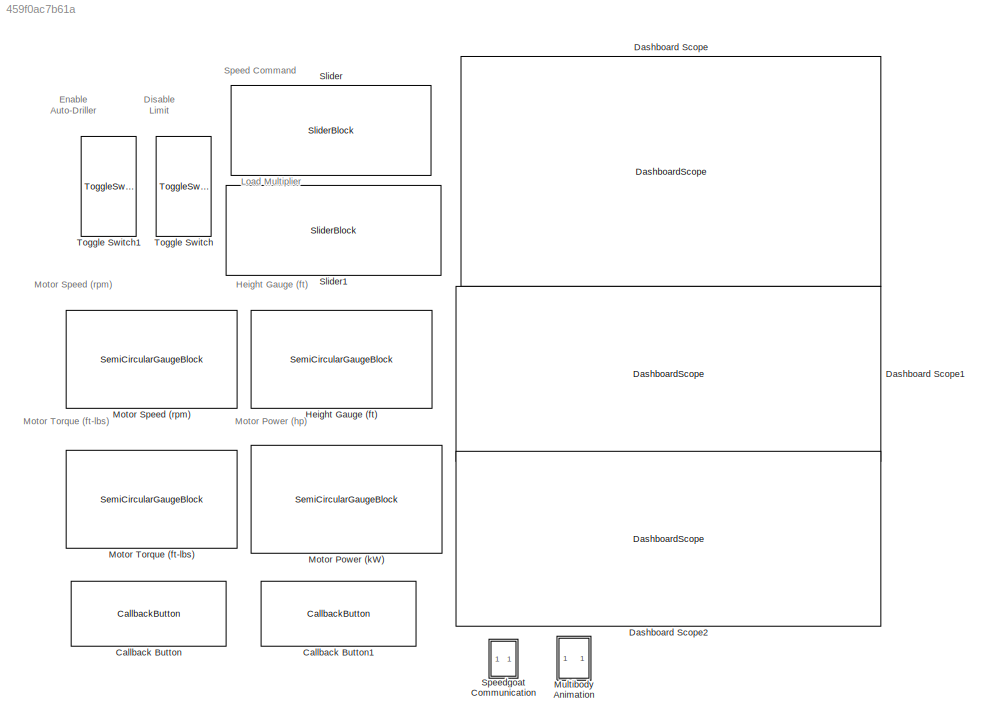
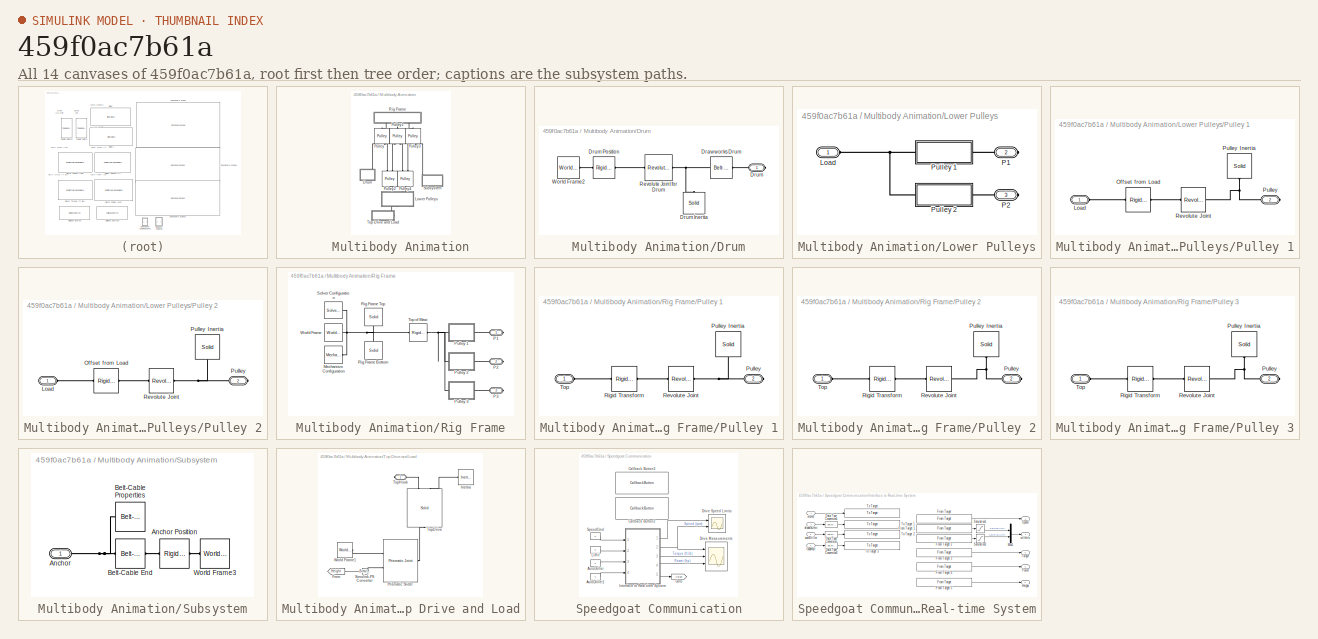
[diagram: thumbnail index - all 14 canvases of the model, root first then tree order]
MODEL slx_459f0ac7b61a
KIND model
CONFIG AbsTol = auto
CONFIG EnableMultiTasking = off
CONFIG FixedStep = 10*Ts
CONFIG InitFcn = Ts = 10e-4;        % SPS/Overall Simulation time step\nTssc = 10*Ts;       % Simscape simulation time step\n\nG = 10;\nRdrum = 0.25;\nNp = 5;\nm_topdrive = 1000;\nm_drillstring = 22500;\nRpulley = Rdrum;\n\nm = m_topdrive + m_drillstring;\n\n% Top/Bottom Distance\nxtop = 48*0.3048;\nxbott = 0;\n\n% Maximum Torque/Power of Drive\nTmax = 8000*1.36;\nPmax = 1500*746;\n\n% Initial Conditions\nv0 = 0; %m/s\nx0 = 0; %m\n\n% Gr...<+55ch>
CONFIG MaxStep = auto
CONFIG MinStep = auto
CONFIG PreLoadFcn = addpath('CAD_Files');\nwarning('off','sm:sli:setup:compile:LocalSolverNotSupported');\n\nloadScale = 4;
CONFIG RelTol = 1e-3
CONFIG SampleTimeConstraint = Unconstrained
CONFIG Solver = ode14x
CONFIG SolverName = ode14x
CONFIG StartTime = 0.0
CONFIG StopFcn = tg = slrt;\ntg.stop;
CONFIG StopTime = inf
BLOCK [CallbackButton] Callback Button
  ButtonText = Open PLC Program (Studio 5000)
  ClickFcn = winopen(['.\PLC_Project\AutoDriller_Ladder_SLRT.ACD']);
  WebBlockId = 1418
BLOCK [CallbackButton] Callback Button1
  ButtonText = Load Plant on Speedgoat
  ClickFcn = model = 'Drawworks_Plant';\ntg = slrt;\nopen_system(model);\nrtwbuild(model);\ntg.load(model);
  WebBlockId = 1420
BLOCK [DashboardScope] Dashboard Scope
  ScaleAtStop = off
  TimeSpan = 60
  WebBlockId = 1425
  Ymax = 2000
  Ymin = -2000
BLOCK [DashboardScope] Dashboard Scope1
  ScaleAtStop = off
  TimeSpan = 60
  WebBlockId = 1429
  Ymax = 11000
  Ymin = 0
BLOCK [DashboardScope] Dashboard Scope2
  ScaleAtStop = off
  TimeSpan = 60
  WebBlockId = 1430
  Ymax = 2000
  Ymin = -2000
BLOCK [SemiCircularGaugeBlock] Height Gauge (ft)
  LabelPosition = Hide
  ScaleMax = 50
  TickInterval = 10
  WebBlockId = 1281
BLOCK [SemiCircularGaugeBlock] Motor Power (kW)
  LabelPosition = Hide
  ScaleMax = 1500
  ScaleMin = -1500
  TickInterval = 500
  WebBlockId = 1282
BLOCK [SemiCircularGaugeBlock] Motor Speed (rpm)
  LabelPosition = Hide
  ScaleMax = 1500
  ScaleMin = -1500
  TickInterval = 500
  WebBlockId = 1283
BLOCK [SemiCircularGaugeBlock] Motor Torque (ft-lbs)
  LabelPosition = Hide
  ScaleMax = 10000
  ScaleMin = -10000
  TickInterval = 5000
  WebBlockId = 1284
BLOCK [SubSystem] Multibody Animation
  Ports = []
  RequestExecContextInheritance = off
BLOCK [SubSystem] Multibody Animation/Drum
  Ports = [0, 0, 0, 0, 0, 0, 1]
  RequestExecContextInheritance = off
BLOCK [Reference] Multibody Animation/Drum/Drawworks Drum  REF=sm_lib/Belts and Cables/Belt-Cable Spool
  Ports = [0, 0, 0, 0, 0, 1, 1]
  SourceBlock = sm_lib/Belts and Cables/Belt-Cable Spool
  SourceProductBaseCode = MS
  SourceProductName = Simscape Multibody
  SourceType = Belt-Cable Spool
BLOCK [PMIOPort] Multibody Animation/Drum/Drum
  Side = Right
BLOCK [Reference] Multibody Animation/Drum/Drum Inertia  REF=sm_lib/Body Elements/Solid
  Ports = [0, 0, 0, 0, 0, 1]
  SourceBlock = sm_lib/Body Elements/Solid
  SourceProductBaseCode = MS
  SourceProductName = Simscape Multibody
  SourceType = Solid
BLOCK [Reference] Multibody Animation/Drum/Drum Position  REF=sm_lib/Frames and
Transforms/Rigid
Transform
  Ports = [0, 0, 0, 0, 0, 1, 1]
  SourceBlock = sm_lib/Frames and\nTransforms/Rigid\nTransform
  SourceProductBaseCode = MS
  SourceProductName = Simscape Multibody
  SourceType = Rigid\nTransform
BLOCK [Reference] Multibody Animation/Drum/Revolute Joint for Drum  REF=sm_lib/Joints/Revolute Joint
  Ports = [0, 0, 0, 0, 0, 1, 1]
  SourceBlock = sm_lib/Joints/Revolute Joint
  SourceProductBaseCode = MS
  SourceProductName = Simscape Multibody
  SourceType = Revolute Joint
BLOCK [Reference] Multibody Animation/Drum/World Frame2  REF=sm_lib/Frames and
Transforms/World Frame
  Ports = [0, 0, 0, 0, 0, 0, 1]
  SourceBlock = sm_lib/Frames and\nTransforms/World Frame
  SourceProductBaseCode = MS
  SourceProductName = Simscape Multibody
  SourceType = World Frame
BLOCK [SubSystem] Multibody Animation/Lower Pulleys
  Ports = [0, 0, 0, 0, 0, 1, 2]
  RequestExecContextInheritance = off
BLOCK [PMIOPort] Multibody Animation/Lower Pulleys/Load
  Side = Left
BLOCK [PMIOPort] Multibody Animation/Lower Pulleys/P1
  Port = 2
  Side = Right
BLOCK [PMIOPort] Multibody Animation/Lower Pulleys/P2
  Port = 3
  Side = Right
BLOCK [SubSystem] Multibody Animation/Lower Pulleys/Pulley 1
  Ports = [0, 0, 0, 0, 0, 1, 1]
  RequestExecContextInheritance = off
BLOCK [PMIOPort] Multibody Animation/Lower Pulleys/Pulley 1/Load
  Side = Left
BLOCK [Reference] Multibody Animation/Lower Pulleys/Pulley 1/Offset from Load  REF=sm_lib/Frames and
Transforms/Rigid
Transform
  Ports = [0, 0, 0, 0, 0, 1, 1]
  SourceBlock = sm_lib/Frames and\nTransforms/Rigid\nTransform
  SourceProductBaseCode = MS
  SourceProductName = Simscape Multibody
  SourceType = Rigid\nTransform
BLOCK [PMIOPort] Multibody Animation/Lower Pulleys/Pulley 1/Pulley
  Port = 2
  Side = Right
BLOCK [Reference] Multibody Animation/Lower Pulleys/Pulley 1/Pulley Inertia  REF=sm_lib/Body Elements/Solid
  Ports = [0, 0, 0, 0, 0, 1]
  SourceBlock = sm_lib/Body Elements/Solid
  SourceProductBaseCode = MS
  SourceProductName = Simscape Multibody
  SourceType = Solid
BLOCK [Reference] Multibody Animation/Lower Pulleys/Pulley 1/Revolute Joint  REF=sm_lib/Joints/Revolute Joint
  Ports = [0, 0, 0, 0, 0, 1, 1]
  SourceBlock = sm_lib/Joints/Revolute Joint
  SourceProductBaseCode = MS
  SourceProductName = Simscape Multibody
  SourceType = Revolute Joint
BLOCK [SubSystem] Multibody Animation/Lower Pulleys/Pulley 2
  Ports = [0, 0, 0, 0, 0, 1, 1]
  RequestExecContextInheritance = off
BLOCK [PMIOPort] Multibody Animation/Lower Pulleys/Pulley 2/Load
  Side = Left
BLOCK [Reference] Multibody Animation/Lower Pulleys/Pulley 2/Offset from Load  REF=sm_lib/Frames and
Transforms/Rigid
Transform
  Ports = [0, 0, 0, 0, 0, 1, 1]
  SourceBlock = sm_lib/Frames and\nTransforms/Rigid\nTransform
  SourceProductBaseCode = MS
  SourceProductName = Simscape Multibody
  SourceType = Rigid\nTransform
BLOCK [PMIOPort] Multibody Animation/Lower Pulleys/Pulley 2/Pulley
  Port = 2
  Side = Right
BLOCK [Reference] Multibody Animation/Lower Pulleys/Pulley 2/Pulley Inertia  REF=sm_lib/Body Elements/Solid
  Ports = [0, 0, 0, 0, 0, 1]
  SourceBlock = sm_lib/Body Elements/Solid
  SourceProductBaseCode = MS
  SourceProductName = Simscape Multibody
  SourceType = Solid
BLOCK [Reference] Multibody Animation/Lower Pulleys/Pulley 2/Revolute Joint  REF=sm_lib/Joints/Revolute Joint
  Ports = [0, 0, 0, 0, 0, 1, 1]
  SourceBlock = sm_lib/Joints/Revolute Joint
  SourceProductBaseCode = MS
  SourceProductName = Simscape Multibody
  SourceType = Revolute Joint
BLOCK [Reference] Multibody Animation/Pulley  REF=sm_lib/Belts and Cables/Pulley
  Ports = [0, 0, 0, 0, 0, 1, 2]
  SourceBlock = sm_lib/Belts and Cables/Pulley
  SourceProductBaseCode = MS
  SourceProductName = Simscape Multibody
  SourceType = Pulley
BLOCK [Reference] Multibody Animation/Pulley1  REF=sm_lib/Belts and Cables/Pulley
  Ports = [0, 0, 0, 0, 0, 1, 2]
  SourceBlock = sm_lib/Belts and Cables/Pulley
  SourceProductBaseCode = MS
  SourceProductName = Simscape Multibody
  SourceType = Pulley
BLOCK [Reference] Multibody Animation/Pulley2  REF=sm_lib/Belts and Cables/Pulley
  Ports = [0, 0, 0, 0, 0, 1, 2]
  SourceBlock = sm_lib/Belts and Cables/Pulley
  SourceProductBaseCode = MS
  SourceProductName = Simscape Multibody
  SourceType = Pulley
BLOCK [Reference] Multibody Animation/Pulley3  REF=sm_lib/Belts and Cables/Pulley
  Ports = [0, 0, 0, 0, 0, 1, 2]
  SourceBlock = sm_lib/Belts and Cables/Pulley
  SourceProductBaseCode = MS
  SourceProductName = Simscape Multibody
  SourceType = Pulley
BLOCK [Reference] Multibody Animation/Pulley4  REF=sm_lib/Belts and Cables/Pulley
  Ports = [0, 0, 0, 0, 0, 1, 2]
  SourceBlock = sm_lib/Belts and Cables/Pulley
  SourceProductBaseCode = MS
  SourceProductName = Simscape Multibody
  SourceType = Pulley
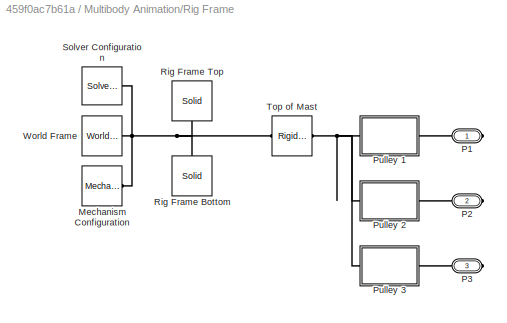
BLOCK [SubSystem] Multibody Animation/Rig Frame
  Ports = [0, 0, 0, 0, 0, 0, 3]
  RequestExecContextInheritance = off
BLOCK [Reference] Multibody Animation/Rig Frame/Mechanism Configuration  REF=sm_lib/Utilities/Mechanism
Configuration
  Ports = [0, 0, 0, 0, 0, 0, 1]
  SourceBlock = sm_lib/Utilities/Mechanism\nConfiguration
  SourceProductBaseCode = MS
  SourceProductName = Simscape Multibody
  SourceType = Mechanism\nConfiguration
BLOCK [PMIOPort] Multibody Animation/Rig Frame/P1
  Side = Right
BLOCK [PMIOPort] Multibody Animation/Rig Frame/P2
  Port = 2
  Side = Right
BLOCK [PMIOPort] Multibody Animation/Rig Frame/P3
  Port = 3
  Side = Right
BLOCK [SubSystem] Multibody Animation/Rig Frame/Pulley 1
  Ports = [0, 0, 0, 0, 0, 1, 1]
  RequestExecContextInheritance = off
BLOCK [PMIOPort] Multibody Animation/Rig Frame/Pulley 1/Pulley
  Port = 2
  Side = Right
BLOCK [Reference] Multibody Animation/Rig Frame/Pulley 1/Pulley Inertia  REF=sm_lib/Body Elements/Solid
  Ports = [0, 0, 0, 0, 0, 1]
  SourceBlock = sm_lib/Body Elements/Solid
  SourceProductBaseCode = MS
  SourceProductName = Simscape Multibody
  SourceType = Solid
BLOCK [Reference] Multibody Animation/Rig Frame/Pulley 1/Revolute Joint  REF=sm_lib/Joints/Revolute Joint
  Ports = [0, 0, 0, 0, 0, 1, 1]
  SourceBlock = sm_lib/Joints/Revolute Joint
  SourceProductBaseCode = MS
  SourceProductName = Simscape Multibody
  SourceType = Revolute Joint
BLOCK [Reference] Multibody Animation/Rig Frame/Pulley 1/Rigid Transform  REF=sm_lib/Frames and
Transforms/Rigid
Transform
  Ports = [0, 0, 0, 0, 0, 1, 1]
  SourceBlock = sm_lib/Frames and\nTransforms/Rigid\nTransform
  SourceProductBaseCode = MS
  SourceProductName = Simscape Multibody
  SourceType = Rigid\nTransform
BLOCK [PMIOPort] Multibody Animation/Rig Frame/Pulley 1/Top
  Side = Left
BLOCK [SubSystem] Multibody Animation/Rig Frame/Pulley 2
  Ports = [0, 0, 0, 0, 0, 1, 1]
  RequestExecContextInheritance = off
BLOCK [PMIOPort] Multibody Animation/Rig Frame/Pulley 2/Pulley
  Port = 2
  Side = Right
BLOCK [Reference] Multibody Animation/Rig Frame/Pulley 2/Pulley Inertia  REF=sm_lib/Body Elements/Solid
  Ports = [0, 0, 0, 0, 0, 1]
  SourceBlock = sm_lib/Body Elements/Solid
  SourceProductBaseCode = MS
  SourceProductName = Simscape Multibody
  SourceType = Solid
BLOCK [Reference] Multibody Animation/Rig Frame/Pulley 2/Revolute Joint  REF=sm_lib/Joints/Revolute Joint
  Ports = [0, 0, 0, 0, 0, 1, 1]
  SourceBlock = sm_lib/Joints/Revolute Joint
  SourceProductBaseCode = MS
  SourceProductName = Simscape Multibody
  SourceType = Revolute Joint
BLOCK [Reference] Multibody Animation/Rig Frame/Pulley 2/Rigid Transform  REF=sm_lib/Frames and
Transforms/Rigid
Transform
  Ports = [0, 0, 0, 0, 0, 1, 1]
  SourceBlock = sm_lib/Frames and\nTransforms/Rigid\nTransform
  SourceProductBaseCode = MS
  SourceProductName = Simscape Multibody
  SourceType = Rigid\nTransform
BLOCK [PMIOPort] Multibody Animation/Rig Frame/Pulley 2/Top
  Side = Left
BLOCK [SubSystem] Multibody Animation/Rig Frame/Pulley 3
  Ports = [0, 0, 0, 0, 0, 1, 1]
  RequestExecContextInheritance = off
BLOCK [PMIOPort] Multibody Animation/Rig Frame/Pulley 3/Pulley
  Port = 2
  Side = Right
BLOCK [Reference] Multibody Animation/Rig Frame/Pulley 3/Pulley Inertia  REF=sm_lib/Body Elements/Solid
  Ports = [0, 0, 0, 0, 0, 1]
  SourceBlock = sm_lib/Body Elements/Solid
  SourceProductBaseCode = MS
  SourceProductName = Simscape Multibody
  SourceType = Solid
BLOCK [Reference] Multibody Animation/Rig Frame/Pulley 3/Revolute Joint  REF=sm_lib/Joints/Revolute Joint
  Ports = [0, 0, 0, 0, 0, 1, 1]
  SourceBlock = sm_lib/Joints/Revolute Joint
  SourceProductBaseCode = MS
  SourceProductName = Simscape Multibody
  SourceType = Revolute Joint
BLOCK [Reference] Multibody Animation/Rig Frame/Pulley 3/Rigid Transform  REF=sm_lib/Frames and
Transforms/Rigid
Transform
  Ports = [0, 0, 0, 0, 0, 1, 1]
  SourceBlock = sm_lib/Frames and\nTransforms/Rigid\nTransform
  SourceProductBaseCode = MS
  SourceProductName = Simscape Multibody
  SourceType = Rigid\nTransform
BLOCK [PMIOPort] Multibody Animation/Rig Frame/Pulley 3/Top
  Side = Left
BLOCK [Reference] Multibody Animation/Rig Frame/Rig Frame Bottom  REF=sm_lib/Body Elements/Solid
  Ports = [0, 0, 0, 0, 0, 1]
  SourceBlock = sm_lib/Body Elements/Solid
  SourceProductBaseCode = MS
  SourceProductName = Simscape Multibody
  SourceType = Solid
BLOCK [Reference] Multibody Animation/Rig Frame/Rig Frame Top  REF=sm_lib/Body Elements/Solid
  Ports = [0, 0, 0, 0, 0, 1]
  SourceBlock = sm_lib/Body Elements/Solid
  SourceProductBaseCode = MS
  SourceProductName = Simscape Multibody
  SourceType = Solid
BLOCK [Reference] Multibody Animation/Rig Frame/Solver Configuration   REF=nesl_utility/Solver
Configuration
  Ports = [0, 0, 0, 0, 0, 0, 1]
  SourceBlock = nesl_utility/Solver\nConfiguration
  SourceProductBaseCode = SS
  SourceProductName = Simscape
  SourceType = Solver\nConfiguration
BLOCK [Reference] Multibody Animation/Rig Frame/Top of Mast  REF=sm_lib/Frames and
Transforms/Rigid
Transform
  Ports = [0, 0, 0, 0, 0, 1, 1]
  SourceBlock = sm_lib/Frames and\nTransforms/Rigid\nTransform
  SourceProductBaseCode = MS
  SourceProductName = Simscape Multibody
  SourceType = Rigid\nTransform
BLOCK [Reference] Multibody Animation/Rig Frame/World Frame  REF=sm_lib/Frames and
Transforms/World Frame
  Ports = [0, 0, 0, 0, 0, 0, 1]
  SourceBlock = sm_lib/Frames and\nTransforms/World Frame
  SourceProductBaseCode = MS
  SourceProductName = Simscape Multibody
  SourceType = World Frame
BLOCK [SubSystem] Multibody Animation/Subsystem
  Ports = [0, 0, 0, 0, 0, 1]
  RequestExecContextInheritance = off
BLOCK [PMIOPort] Multibody Animation/Subsystem/Anchor
  Side = Left
BLOCK [Reference] Multibody Animation/Subsystem/Anchor Position  REF=sm_lib/Frames and
Transforms/Rigid
Transform
  Ports = [0, 0, 0, 0, 0, 1, 1]
  SourceBlock = sm_lib/Frames and\nTransforms/Rigid\nTransform
  SourceProductBaseCode = MS
  SourceProductName = Simscape Multibody
  SourceType = Rigid\nTransform
BLOCK [Reference] Multibody Animation/Subsystem/Belt-Cable End  REF=sm_lib/Belts and Cables/Belt-Cable End
  Ports = [0, 0, 0, 0, 0, 1, 1]
  SourceBlock = sm_lib/Belts and Cables/Belt-Cable End
  SourceProductBaseCode = MS
  SourceProductName = Simscape Multibody
  SourceType = Belt-Cable End
BLOCK [Reference] Multibody Animation/Subsystem/Belt-Cable Properties  REF=sm_lib/Belts and Cables/Belt-Cable
Properties
  Ports = [0, 0, 0, 0, 0, 1]
  SourceBlock = sm_lib/Belts and Cables/Belt-Cable\nProperties
  SourceProductBaseCode = MS
  SourceProductName = Simscape Multibody
  SourceType = Belt-Cable\nProperties
BLOCK [Reference] Multibody Animation/Subsystem/World Frame3  REF=sm_lib/Frames and
Transforms/World Frame
  Ports = [0, 0, 0, 0, 0, 0, 1]
  SourceBlock = sm_lib/Frames and\nTransforms/World Frame
  SourceProductBaseCode = MS
  SourceProductName = Simscape Multibody
  SourceType = World Frame
BLOCK [SubSystem] Multibody Animation/Top Drive and Load
  Ports = [0, 0, 0, 0, 0, 0, 1]
  RequestExecContextInheritance = off
BLOCK [From] Multibody Animation/Top Drive and Load/From
  GotoTag = Height
  TagVisibility = global
BLOCK [Reference] Multibody Animation/Top Drive and Load/Inertia  REF=sm_lib/Body Elements/Inertia
  Ports = [0, 0, 0, 0, 0, 0, 1]
  SourceBlock = sm_lib/Body Elements/Inertia
  SourceProductBaseCode = MS
  SourceProductName = Simscape Multibody
  SourceType = Inertia
BLOCK [Reference] Multibody Animation/Top Drive and Load/Prismatic Slider  REF=sm_lib/Joints/Prismatic
Joint
  Ports = [0, 0, 0, 0, 0, 2, 1]
  SourceBlock = sm_lib/Joints/Prismatic\nJoint
  SourceProductBaseCode = MS
  SourceProductName = Simscape Multibody
  SourceType = Prismatic\nJoint
BLOCK [Reference] Multibody Animation/Top Drive and Load/Simulink-PS Converter  REF=nesl_utility/Simulink-PS
Converter
  Ports = [1, 0, 0, 0, 0, 0, 1]
  SourceBlock = nesl_utility/Simulink-PS\nConverter
  SourceProductBaseCode = SS
  SourceProductName = Simscape
  SourceType = Simulink-PS\nConverter
BLOCK [Reference] Multibody Animation/Top Drive and Load/TopDrive  REF=sm_lib/Body Elements/Solid
  Ports = [0, 0, 0, 0, 0, 2, 1]
  SourceBlock = sm_lib/Body Elements/Solid
  SourceProductBaseCode = MS
  SourceProductName = Simscape Multibody
  SourceType = Solid
BLOCK [PMIOPort] Multibody Animation/Top Drive and Load/TopHook
  Side = Right
BLOCK [Reference] Multibody Animation/Top Drive and Load/World Frame1  REF=sm_lib/Frames and
Transforms/World Frame
  Ports = [0, 0, 0, 0, 0, 0, 1]
  SourceBlock = sm_lib/Frames and\nTransforms/World Frame
  SourceProductBaseCode = MS
  SourceProductName = Simscape Multibody
  SourceType = World Frame
BLOCK [SliderBlock] Slider
  LabelPosition = Hide
  ScaleMax = 1500
  ScaleMin = -1500
  WebBlockId = 1132
BLOCK [SliderBlock] Slider1
  LabelPosition = Hide
  ScaleMax = 6
  ScaleMin = 2
  TickInterval = 1
  WebBlockId = 1290
BLOCK [SubSystem] Speedgoat Communication
  Ports = []
  RequestExecContextInheritance = off
BLOCK [Constant] Speedgoat Communication/AutoDriller
  OutDataTypeStr = boolean
  SampleTime = Tssc
  Value = 0
BLOCK [Constant] Speedgoat Communication/AutoDriller1
  OutDataTypeStr = double
  SampleTime = Tssc
  Value = 4
BLOCK [CallbackButton] Speedgoat Communication/Callback Button2
  ButtonText = Start Plant
  ClickFcn = tg = slrt;\ntg.StopTime = inf;\ntg.start;
  WebBlockId = 1421
BLOCK [CallbackButton] Speedgoat Communication/Callback Button3
  ButtonText = Stop Plant
  ClickFcn = tg = slrt;\ntg.stop;
  WebBlockId = 1422
BLOCK [Scope] Speedgoat Communication/Drive Measurements
  Commented = on
  Floating = off
  NumInputPorts = 3
  Ports = [3]
  ScopeSpecificationString = Simulink.scopes.TimeScopeBlockCfg('CurrentConfiguration', extmgr.ConfigurationSet(extmgr.Configuration('Core','General UI',true),extmgr.Configuration('Core','Source UI',true),extmgr.Configuration('Sources','WiredSimulink',true,'DataLoggingSaveFormat','Array','DataLoggingDecimation','1','DataLoggingDecimateData',true,'DataLoggingVariableName','ScopeData1'),extmgr.Configuration('Visuals','Time Domai...<+3020ch>
BLOCK [Scope] Speedgoat Communication/Drive Speed Limits
  Commented = on
  Floating = off
  NumInputPorts = 2
  Ports = [2]
  ScopeSpecificationString = Simulink.scopes.TimeScopeBlockCfg('CurrentConfiguration', extmgr.ConfigurationSet(extmgr.Configuration('Core','General UI',true),extmgr.Configuration('Core','Source UI',true),extmgr.Configuration('Sources','WiredSimulink',true,'DataLoggingVariableName','ScopeData2'),extmgr.Configuration('Visuals','Time Domain',true,'SerializedDisplays',{struct('MinYLimReal','-1875.00000','MaxYLimReal','1875.00000'...<+1906ch>
BLOCK [Goto] Speedgoat Communication/Goto
  GotoTag = Height
  TagVisibility = global
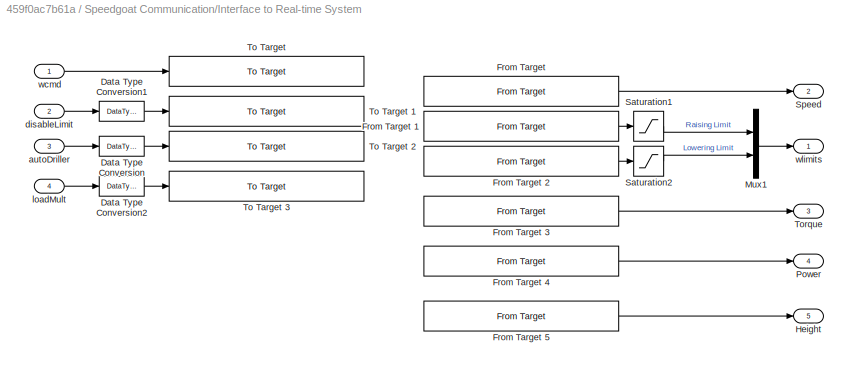
BLOCK [SubSystem] Speedgoat Communication/Interface to Real-time System
  Ports = [4, 5]
  RequestExecContextInheritance = off
BLOCK [DataTypeConversion] Speedgoat Communication/Interface to Real-time System/Data Type Conversion
  OutDataTypeStr = double
  RndMeth = Floor
  SaturateOnIntegerOverflow = off
BLOCK [DataTypeConversion] Speedgoat Communication/Interface to Real-time System/Data Type Conversion1
  OutDataTypeStr = double
  RndMeth = Floor
  SaturateOnIntegerOverflow = off
BLOCK [DataTypeConversion] Speedgoat Communication/Interface to Real-time System/Data Type Conversion2
  OutDataTypeStr = double
  RndMeth = Floor
  SaturateOnIntegerOverflow = off
BLOCK [Reference] Speedgoat Communication/Interface to Real-time System/From Target   REF=slrtlib/Displays and
Logging/From Target 
  Ports = [0, 1]
  SourceBlock = slrtlib/Displays and\nLogging/From Target
  SourceProductBaseCode = XP
  SourceProductName = Simulink Real-Time
  SourceType = xpc2dng
BLOCK [Reference] Speedgoat Communication/Interface to Real-time System/From Target 1  REF=slrtlib/Displays and
Logging/From Target 
  Ports = [0, 1]
  SourceBlock = slrtlib/Displays and\nLogging/From Target
  SourceProductBaseCode = XP
  SourceProductName = Simulink Real-Time
  SourceType = xpc2dng
BLOCK [Reference] Speedgoat Communication/Interface to Real-time System/From Target 2  REF=slrtlib/Displays and
Logging/From Target 
  Ports = [0, 1]
  SourceBlock = slrtlib/Displays and\nLogging/From Target
  SourceProductBaseCode = XP
  SourceProductName = Simulink Real-Time
  SourceType = xpc2dng
BLOCK [Reference] Speedgoat Communication/Interface to Real-time System/From Target 3  REF=slrtlib/Displays and
Logging/From Target 
  Ports = [0, 1]
  SourceBlock = slrtlib/Displays and\nLogging/From Target
  SourceProductBaseCode = XP
  SourceProductName = Simulink Real-Time
  SourceType = xpc2dng
BLOCK [Reference] Speedgoat Communication/Interface to Real-time System/From Target 4  REF=slrtlib/Displays and
Logging/From Target 
  Ports = [0, 1]
  SourceBlock = slrtlib/Displays and\nLogging/From Target
  SourceProductBaseCode = XP
  SourceProductName = Simulink Real-Time
  SourceType = xpc2dng
BLOCK [Reference] Speedgoat Communication/Interface to Real-time System/From Target 5  REF=slrtlib/Displays and
Logging/From Target 
  Ports = [0, 1]
  SourceBlock = slrtlib/Displays and\nLogging/From Target
  SourceProductBaseCode = XP
  SourceProductName = Simulink Real-Time
  SourceType = xpc2dng
BLOCK [Outport] Speedgoat Communication/Interface to Real-time System/Height
  IconDisplay = Port number
  Port = 5
BLOCK [Mux] Speedgoat Communication/Interface to Real-time System/Mux1
  DisplayOption = bar
  Inputs = 2
  Ports = [2, 1]
BLOCK [Outport] Speedgoat Communication/Interface to Real-time System/Power
  IconDisplay = Port number
  Port = 4
BLOCK [Saturate] Speedgoat Communication/Interface to Real-time System/Saturation1
  InputPortMap = u0
  LowerLimit = -1500
  Ports = [1, 1]
  UpperLimit = 1500
BLOCK [Saturate] Speedgoat Communication/Interface to Real-time System/Saturation2
  InputPortMap = u0
  LowerLimit = -1500
  Ports = [1, 1]
  UpperLimit = 1500
BLOCK [Outport] Speedgoat Communication/Interface to Real-time System/Speed
  IconDisplay = Port number
  Port = 2
BLOCK [Reference] Speedgoat Communication/Interface to Real-time System/To Target   REF=slrtlib/Displays and
Logging/To Target 
  Ports = [1]
  SourceBlock = slrtlib/Displays and\nLogging/To Target
  SourceProductBaseCode = XP
  SourceProductName = Simulink Real-Time
  SourceType = dng2xpc
BLOCK [Reference] Speedgoat Communication/Interface to Real-time System/To Target 1  REF=slrtlib/Displays and
Logging/To Target 
  Ports = [1]
  SourceBlock = slrtlib/Displays and\nLogging/To Target
  SourceProductBaseCode = XP
  SourceProductName = Simulink Real-Time
  SourceType = dng2xpc
BLOCK [Reference] Speedgoat Communication/Interface to Real-time System/To Target 2  REF=slrtlib/Displays and
Logging/To Target 
  Ports = [1]
  SourceBlock = slrtlib/Displays and\nLogging/To Target
  SourceProductBaseCode = XP
  SourceProductName = Simulink Real-Time
  SourceType = dng2xpc
BLOCK [Reference] Speedgoat Communication/Interface to Real-time System/To Target 3  REF=slrtlib/Displays and
Logging/To Target 
  Ports = [1]
  SourceBlock = slrtlib/Displays and\nLogging/To Target
  SourceProductBaseCode = XP
  SourceProductName = Simulink Real-Time
  SourceType = dng2xpc
BLOCK [Outport] Speedgoat Communication/Interface to Real-time System/Torque
  IconDisplay = Port number
  Port = 3
BLOCK [Inport] Speedgoat Communication/Interface to Real-time System/autoDriller
  IconDisplay = Port number
  Port = 3
BLOCK [Inport] Speedgoat Communication/Interface to Real-time System/disableLimit
  IconDisplay = Port number
  Port = 2
BLOCK [Inport] Speedgoat Communication/Interface to Real-time System/loadMult
  IconDisplay = Port number
  Port = 4
BLOCK [Inport] Speedgoat Communication/Interface to Real-time System/wcmd
  IconDisplay = Port number
BLOCK [Outport] Speedgoat Communication/Interface to Real-time System/wlimits
  IconDisplay = Port number
BLOCK [Constant] Speedgoat Communication/Limit
  OutDataTypeStr = boolean
  SampleTime = Tssc
  Value = 0
BLOCK [Constant] Speedgoat Communication/SpeedCmd
  OutDataTypeStr = double
  SampleTime = Tssc
  Value = 0
BLOCK [ToggleSwitchBlock] Toggle Switch
  LabelPosition = Hide
  WebBlockId = 1329
BLOCK [ToggleSwitchBlock] Toggle Switch1
  LabelPosition = Hide
  WebBlockId = 1330
ANNOTATION (root): Motor Power (hp)
ANNOTATION (root): Disable Limit
ANNOTATION (root): Enable Auto-Driller
ANNOTATION (root): Height Gauge (ft)
ANNOTATION (root): Load Multiplier
ANNOTATION (root): Motor Speed (rpm)
ANNOTATION (root): Motor Torque (ft-lbs)
ANNOTATION (root): Speed Command
LINE Multibody Animation/Top Drive and Load/From:1 -> Multibody Animation/Top Drive and Load/Simulink-PS Converter:1
LINE Speedgoat Communication/AutoDriller1:1 -> Speedgoat Communication/Interface to Real-time System:4
LINE Speedgoat Communication/AutoDriller:1 -> Speedgoat Communication/Interface to Real-time System:3
LINE Speedgoat Communication/Interface to Real-time System/Data Type Conversion1:1 -> Speedgoat Communication/Interface to Real-time System/To Target 1:1
LINE Speedgoat Communication/Interface to Real-time System/Data Type Conversion2:1 -> Speedgoat Communication/Interface to Real-time System/To Target 3:1
LINE Speedgoat Communication/Interface to Real-time System/Data Type Conversion:1 -> Speedgoat Communication/Interface to Real-time System/To Target 2:1
LINE Speedgoat Communication/Interface to Real-time System/From Target 1:1 -> Speedgoat Communication/Interface to Real-time System/Saturation1:1
LINE Speedgoat Communication/Interface to Real-time System/From Target 2:1 -> Speedgoat Communication/Interface to Real-time System/Saturation2:1
LINE Speedgoat Communication/Interface to Real-time System/From Target 3:1 -> Speedgoat Communication/Interface to Real-time System/Torque:1
LINE Speedgoat Communication/Interface to Real-time System/From Target 4:1 -> Speedgoat Communication/Interface to Real-time System/Power:1
LINE Speedgoat Communication/Interface to Real-time System/From Target 5:1 -> Speedgoat Communication/Interface to Real-time System/Height:1
LINE Speedgoat Communication/Interface to Real-time System/From Target :1 -> Speedgoat Communication/Interface to Real-time System/Speed:1
LINE Speedgoat Communication/Interface to Real-time System/Mux1:1 -> Speedgoat Communication/Interface to Real-time System/wlimits:1
LINE Speedgoat Communication/Interface to Real-time System/Saturation1:1 -> Speedgoat Communication/Interface to Real-time System/Mux1:1
LINE Speedgoat Communication/Interface to Real-time System/Saturation2:1 -> Speedgoat Communication/Interface to Real-time System/Mux1:2
LINE Speedgoat Communication/Interface to Real-time System/autoDriller:1 -> Speedgoat Communication/Interface to Real-time System/Data Type Conversion:1
LINE Speedgoat Communication/Interface to Real-time System/disableLimit:1 -> Speedgoat Communication/Interface to Real-time System/Data Type Conversion1:1
LINE Speedgoat Communication/Interface to Real-time System/loadMult:1 -> Speedgoat Communication/Interface to Real-time System/Data Type Conversion2:1
LINE Speedgoat Communication/Interface to Real-time System/wcmd:1 -> Speedgoat Communication/Interface to Real-time System/To Target :1
LINE Speedgoat Communication/Interface to Real-time System:1 -> Speedgoat Communication/Drive Speed Limits:1
NET Speedgoat Communication/Interface to Real-time System:2 -> Speedgoat Communication/Drive Measurements:1, Speedgoat Communication/Drive Speed Limits:2
LINE Speedgoat Communication/Interface to Real-time System:3 -> Speedgoat Communication/Drive Measurements:2
LINE Speedgoat Communication/Interface to Real-time System:4 -> Speedgoat Communication/Drive Measurements:3
LINE Speedgoat Communication/Interface to Real-time System:5 -> Speedgoat Communication/Goto:1
LINE Speedgoat Communication/Limit:1 -> Speedgoat Communication/Interface to Real-time System:2
LINE Speedgoat Communication/SpeedCmd:1 -> Speedgoat Communication/Interface to Real-time System:1
PNET net1: Multibody Animation/Drum/Drawworks Drum:LConn1 -- Multibody Animation/Drum/Drum Inertia:LConn1 -- Multibody Animation/Drum/Revolute Joint for Drum:RConn1
PLINE Multibody Animation/Drum/Drawworks Drum:RConn1 -- Multibody Animation/Drum/Drum:RConn1
PLINE Multibody Animation/Drum/Drum Position:LConn1 -- Multibody Animation/Drum/World Frame2:RConn1
PLINE Multibody Animation/Drum/Drum Position:RConn1 -- Multibody Animation/Drum/Revolute Joint for Drum:LConn1
PLINE Multibody Animation/Drum:RConn1 -- Multibody Animation/Pulley:RConn1
PNET net2: Multibody Animation/Lower Pulleys/Load:RConn1 -- Multibody Animation/Lower Pulleys/Pulley 1:LConn1 -- Multibody Animation/Lower Pulleys/Pulley 2:LConn1
PLINE Multibody Animation/Lower Pulleys/P1:RConn1 -- Multibody Animation/Lower Pulleys/Pulley 1:RConn1
PLINE Multibody Animation/Lower Pulleys/P2:RConn1 -- Multibody Animation/Lower Pulleys/Pulley 2:RConn1
PLINE Multibody Animation/Lower Pulleys/Pulley 1/Load:RConn1 -- Multibody Animation/Lower Pulleys/Pulley 1/Offset from Load:LConn1
PLINE Multibody Animation/Lower Pulleys/Pulley 1/Offset from Load:RConn1 -- Multibody Animation/Lower Pulleys/Pulley 1/Revolute Joint:LConn1
PNET net3: Multibody Animation/Lower Pulleys/Pulley 1/Pulley Inertia:LConn1 -- Multibody Animation/Lower Pulleys/Pulley 1/Pulley:RConn1 -- Multibody Animation/Lower Pulleys/Pulley 1/Revolute Joint:RConn1
PLINE Multibody Animation/Lower Pulleys/Pulley 2/Load:RConn1 -- Multibody Animation/Lower Pulleys/Pulley 2/Offset from Load:LConn1
PLINE Multibody Animation/Lower Pulleys/Pulley 2/Offset from Load:RConn1 -- Multibody Animation/Lower Pulleys/Pulley 2/Revolute Joint:LConn1
PNET net4: Multibody Animation/Lower Pulleys/Pulley 2/Pulley Inertia:LConn1 -- Multibody Animation/Lower Pulleys/Pulley 2/Pulley:RConn1 -- Multibody Animation/Lower Pulleys/Pulley 2/Revolute Joint:RConn1
PLINE Multibody Animation/Lower Pulleys:LConn1 -- Multibody Animation/Top Drive and Load:RConn1
PLINE Multibody Animation/Lower Pulleys:RConn1 -- Multibody Animation/Pulley2:LConn1
PLINE Multibody Animation/Lower Pulleys:RConn2 -- Multibody Animation/Pulley4:LConn1
PLINE Multibody Animation/Pulley1:LConn1 -- Multibody Animation/Rig Frame:RConn2
PLINE Multibody Animation/Pulley1:RConn1 -- Multibody Animation/Pulley2:RConn2
PLINE Multibody Animation/Pulley1:RConn2 -- Multibody Animation/Pulley4:RConn1
PLINE Multibody Animation/Pulley2:RConn1 -- Multibody Animation/Pulley:RConn2
PLINE Multibody Animation/Pulley3:LConn1 -- Multibody Animation/Rig Frame:RConn3
PLINE Multibody Animation/Pulley3:RConn1 -- Multibody Animation/Pulley4:RConn2
PLINE Multibody Animation/Pulley3:RConn2 -- Multibody Animation/Subsystem:LConn1
PLINE Multibody Animation/Pulley:LConn1 -- Multibody Animation/Rig Frame:RConn1
PNET net5: Multibody Animation/Rig Frame/Mechanism Configuration:RConn1 -- Multibody Animation/Rig Frame/Rig Frame Bottom:LConn1 -- Multibody Animation/Rig Frame/Rig Frame Top:LConn1 -- Multibody Animation/Rig Frame/Solver Configuration :RConn1 -- Multibody Animation/Rig Frame/Top of Mast:LConn1 -- Multibody Animation/Rig Frame/World Frame:RConn1
PLINE Multibody Animation/Rig Frame/P1:RConn1 -- Multibody Animation/Rig Frame/Pulley 1:RConn1
PLINE Multibody Animation/Rig Frame/P2:RConn1 -- Multibody Animation/Rig Frame/Pulley 2:RConn1
PLINE Multibody Animation/Rig Frame/P3:RConn1 -- Multibody Animation/Rig Frame/Pulley 3:RConn1
PNET net6: Multibody Animation/Rig Frame/Pulley 1/Pulley Inertia:LConn1 -- Multibody Animation/Rig Frame/Pulley 1/Pulley:RConn1 -- Multibody Animation/Rig Frame/Pulley 1/Revolute Joint:RConn1
PLINE Multibody Animation/Rig Frame/Pulley 1/Revolute Joint:LConn1 -- Multibody Animation/Rig Frame/Pulley 1/Rigid Transform:RConn1
PLINE Multibody Animation/Rig Frame/Pulley 1/Rigid Transform:LConn1 -- Multibody Animation/Rig Frame/Pulley 1/Top:RConn1
PNET net7: Multibody Animation/Rig Frame/Pulley 1:LConn1 -- Multibody Animation/Rig Frame/Pulley 2:LConn1 -- Multibody Animation/Rig Frame/Pulley 3:LConn1 -- Multibody Animation/Rig Frame/Top of Mast:RConn1
PNET net8: Multibody Animation/Rig Frame/Pulley 2/Pulley Inertia:LConn1 -- Multibody Animation/Rig Frame/Pulley 2/Pulley:RConn1 -- Multibody Animation/Rig Frame/Pulley 2/Revolute Joint:RConn1
PLINE Multibody Animation/Rig Frame/Pulley 2/Revolute Joint:LConn1 -- Multibody Animation/Rig Frame/Pulley 2/Rigid Transform:RConn1
PLINE Multibody Animation/Rig Frame/Pulley 2/Rigid Transform:LConn1 -- Multibody Animation/Rig Frame/Pulley 2/Top:RConn1
PNET net9: Multibody Animation/Rig Frame/Pulley 3/Pulley Inertia:LConn1 -- Multibody Animation/Rig Frame/Pulley 3/Pulley:RConn1 -- Multibody Animation/Rig Frame/Pulley 3/Revolute Joint:RConn1
PLINE Multibody Animation/Rig Frame/Pulley 3/Revolute Joint:LConn1 -- Multibody Animation/Rig Frame/Pulley 3/Rigid Transform:RConn1
PLINE Multibody Animation/Rig Frame/Pulley 3/Rigid Transform:LConn1 -- Multibody Animation/Rig Frame/Pulley 3/Top:RConn1
PLINE Multibody Animation/Subsystem/Anchor Position:LConn1 -- Multibody Animation/Subsystem/World Frame3:RConn1
PLINE Multibody Animation/Subsystem/Anchor Position:RConn1 -- Multibody Animation/Subsystem/Belt-Cable End:LConn1
PNET net10: Multibody Animation/Subsystem/Anchor:RConn1 -- Multibody Animation/Subsystem/Belt-Cable End:RConn1 -- Multibody Animation/Subsystem/Belt-Cable Properties:LConn1
PLINE Multibody Animation/Top Drive and Load/Inertia:RConn1 -- Multibody Animation/Top Drive and Load/TopDrive:LConn2
PLINE Multibody Animation/Top Drive and Load/Prismatic Slider:LConn1 -- Multibody Animation/Top Drive and Load/World Frame1:RConn1
PLINE Multibody Animation/Top Drive and Load/Prismatic Slider:LConn2 -- Multibody Animation/Top Drive and Load/Simulink-PS Converter:RConn1
PLINE Multibody Animation/Top Drive and Load/Prismatic Slider:RConn1 -- Multibody Animation/Top Drive and Load/TopDrive:RConn1
PLINE Multibody Animation/Top Drive and Load/TopDrive:LConn1 -- Multibody Animation/Top Drive and Load/TopHook:RConn1
note: NET lines group one-source signal fan-out (src -> all destinations, sorted); 1:1 wires keep LINE; PNET lines group multi-terminal physical nets as a canonical sorted terminal list (undirected conserving connections); 2-terminal nets keep the pairwise PLINE form
